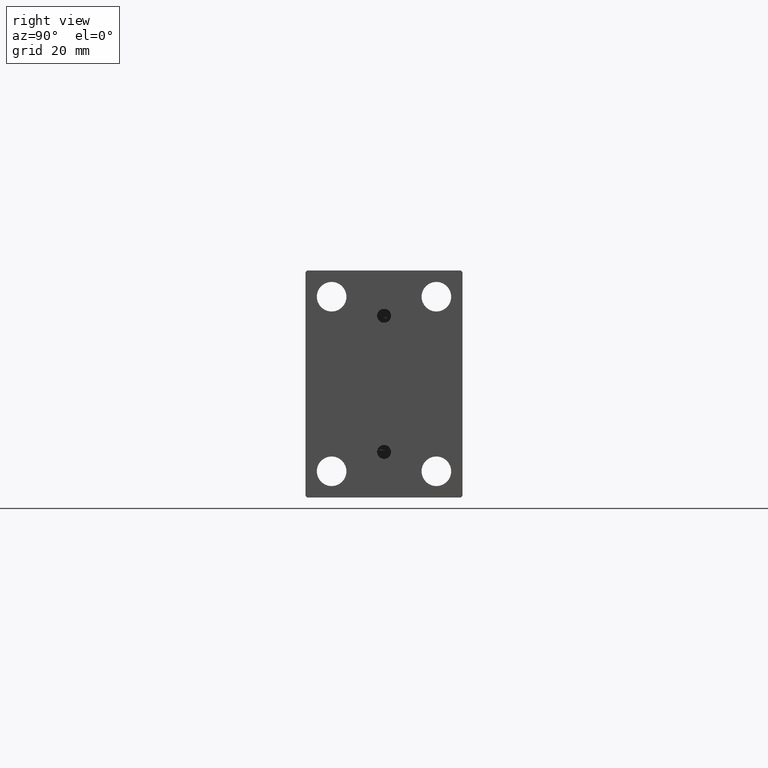
[diagram: clean part render]
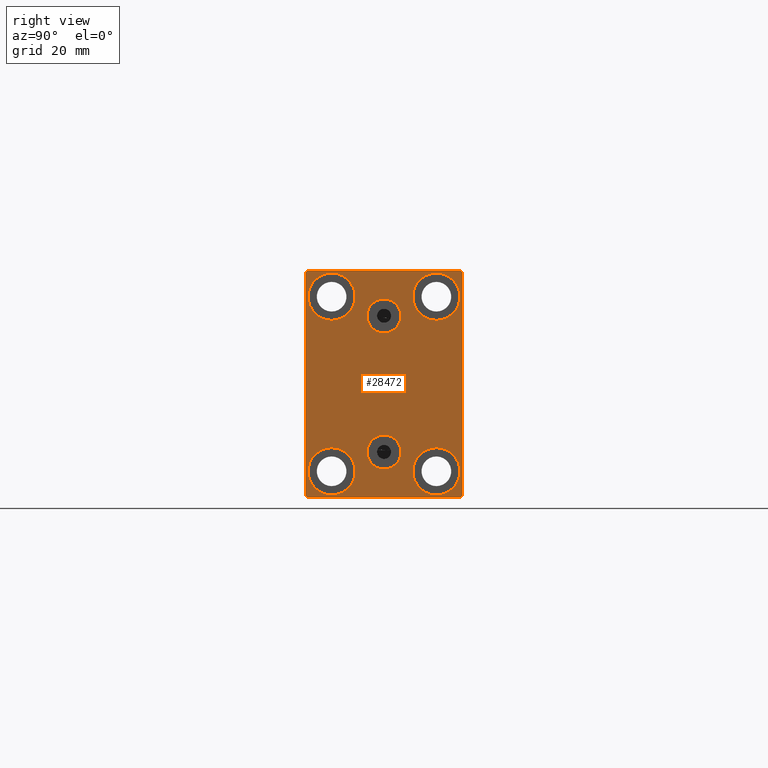
[diagram: same view with one face highlighted and labeled with its STEP entity id]
A machine part, right view. The second image highlights one B-rep face of the part: STEP entity #28472.
In plain terms, the highlighted planar face has unit normal (1, 0, 0).
Its self-contained STEP definition (entity closure, byte-faithful):
#80 = EDGE_CURVE ( 'NONE', #18574, #13682, #30199, .T. ) ;
#302 = DIRECTION ( 'NONE',  ( 0.000000000000000000, 0.000000000000000000, 1.000000000000000000 ) ) ;
#421 = VECTOR ( 'NONE', #9371, 1000.000000000000114 ) ;
#460 = VERTEX_POINT ( 'NONE', #30776 ) ;
#1385 = ORIENTED_EDGE ( 'NONE', *, *, #14246, .F. ) ;
#1437 = AXIS2_PLACEMENT_3D ( 'NONE', #16635, #19230, #37590 ) ;
#1664 = EDGE_CURVE ( 'NONE', #15079, #19727, #45665, .T. ) ;
#1693 = CARTESIAN_POINT ( 'NONE',  ( 130.0000000000000000, 22.50000000000000000, -32.50000000000000711 ) ) ;
#1722 = DIRECTION ( 'NONE',  ( 1.000000000000000000, 0.000000000000000000, 0.000000000000000000 ) ) ;
#2259 = EDGE_CURVE ( 'NONE', #29789, #15079, #23402, .T. ) ;
#2391 = DIRECTION ( 'NONE',  ( 1.000000000000000000, 0.000000000000000000, -0.000000000000000000 ) ) ;
#2956 = FACE_OUTER_BOUND ( 'NONE', #45263, .T. ) ;
#3032 = CARTESIAN_POINT ( 'NONE',  ( 130.0000000000000000, 14.99999999999999645, -31.75000000000000000 ) ) ;
#3393 = CARTESIAN_POINT ( 'NONE',  ( 130.0000000000000000, 14.99999999999999645, -25.00000000000000000 ) ) ;
#3778 = ORIENTED_EDGE ( 'NONE', *, *, #39087, .T. ) ;
#3831 = CIRCLE ( 'NONE', #36166, 4.859999999999999432 ) ;
#4043 = ORIENTED_EDGE ( 'NONE', *, *, #13913, .F. ) ;
#4207 = VECTOR ( 'NONE', #44427, 1000.000000000000000 ) ;
#4267 = CARTESIAN_POINT ( 'NONE',  ( 130.0000000000000000, -14.99999999999999645, 31.75000000000000000 ) ) ;
#4305 = CARTESIAN_POINT ( 'NONE',  ( 130.0000000000000000, 2.983239602722951428E-15, -14.63999999999999702 ) ) ;
#4311 = ORIENTED_EDGE ( 'NONE', *, *, #80, .T. ) ;
#4845 = DIRECTION ( 'NONE',  ( 1.000000000000000000, 0.000000000000000000, 0.000000000000000000 ) ) ;
#5224 = CARTESIAN_POINT ( 'NONE',  ( 130.0000000000000000, 2.388061258337338150E-15, -19.49999999999999645 ) ) ;
#5653 = EDGE_CURVE ( 'NONE', #40511, #36600, #5804, .T. ) ;
#5721 = DIRECTION ( 'NONE',  ( 0.000000000000000000, 0.000000000000000000, -1.000000000000000000 ) ) ;
#5781 = CARTESIAN_POINT ( 'NONE',  ( 130.0000000000000000, -14.99999999999999645, 25.00000000000000000 ) ) ;
#5804 = CIRCLE ( 'NONE', #11831, 4.859999999999999432 ) ;
#6145 = ORIENTED_EDGE ( 'NONE', *, *, #5653, .F. ) ;
#7409 = EDGE_LOOP ( 'NONE', ( #1385, #4043 ) ) ;
#7588 = ORIENTED_EDGE ( 'NONE', *, *, #32630, .T. ) ;
#8311 = CARTESIAN_POINT ( 'NONE',  ( 130.0000000000000000, 15.00000000000000355, 25.00000000000000000 ) ) ;
#8608 = CARTESIAN_POINT ( 'NONE',  ( 130.0000000000000000, 22.49999999999999289, 32.50000000000000000 ) ) ;
#8621 = ORIENTED_EDGE ( 'NONE', *, *, #24229, .T. ) ;
#8906 = EDGE_CURVE ( 'NONE', #44655, #29351, #37476, .T. ) ;
#9371 = DIRECTION ( 'NONE',  ( -0.000000000000000000, 0.7071067811865376918, -0.7071067811865573427 ) ) ;
#9490 = DIRECTION ( 'NONE',  ( 0.000000000000000000, -0.7071067811865474617, -0.7071067811865474617 ) ) ;
#9811 = ORIENTED_EDGE ( 'NONE', *, *, #2259, .T. ) ;
#9849 = VERTEX_POINT ( 'NONE', #33903 ) ;
#9960 = VECTOR ( 'NONE', #33443, 1000.000000000000000 ) ;
#10823 = DIRECTION ( 'NONE',  ( 0.000000000000000000, 1.000000000000000000, 0.000000000000000000 ) ) ;
#11141 = ORIENTED_EDGE ( 'NONE', *, *, #20587, .T. ) ;
#11279 = LINE ( 'NONE', #14586, #38268 ) ;
#11323 = CIRCLE ( 'NONE', #39912, 4.859999999999999432 ) ;
#11491 = DIRECTION ( 'NONE',  ( -1.000000000000000000, -0.000000000000000000, -0.000000000000000000 ) ) ;
#11674 = ORIENTED_EDGE ( 'NONE', *, *, #8906, .T. ) ;
#11781 = CARTESIAN_POINT ( 'NONE',  ( 130.0000000000000000, 27.24999999999955236, 27.25000000000068567 ) ) ;
#11831 = AXIS2_PLACEMENT_3D ( 'NONE', #5224, #2391, #13698 ) ;
#12532 = DIRECTION ( 'NONE',  ( 0.000000000000000000, -1.067522139062650425E-16, 1.000000000000000000 ) ) ;
#12746 = CIRCLE ( 'NONE', #17264, 4.859999999999999432 ) ;
#13334 = DIRECTION ( 'NONE',  ( 1.000000000000000000, 0.000000000000000000, 0.000000000000000000 ) ) ;
#13682 = VERTEX_POINT ( 'NONE', #29245 ) ;
#13687 = VERTEX_POINT ( 'NONE', #4267 ) ;
#13698 = DIRECTION ( 'NONE',  ( 0.000000000000000000, 0.000000000000000000, 1.000000000000000000 ) ) ;
#13726 = ORIENTED_EDGE ( 'NONE', *, *, #40309, .T. ) ;
#13913 = EDGE_CURVE ( 'NONE', #40003, #41973, #11323, .T. ) ;
#14024 = FACE_BOUND ( 'NONE', #21694, .T. ) ;
#14184 = EDGE_CURVE ( 'NONE', #32350, #460, #30140, .T. ) ;
#14203 = EDGE_LOOP ( 'NONE', ( #25457, #6145 ) ) ;
#14246 = EDGE_CURVE ( 'NONE', #41973, #40003, #3831, .T. ) ;
#14586 = CARTESIAN_POINT ( 'NONE',  ( 130.0000000000000000, 27.25000000000000711, -27.25000000000000711 ) ) ;
#14738 = CARTESIAN_POINT ( 'NONE',  ( 130.0000000000000000, -15.00000000000000355, -25.00000000000000000 ) ) ;
#14813 = DIRECTION ( 'NONE',  ( -0.000000000000000000, 0.7071067811865474617, 0.7071067811865474617 ) ) ;
#14836 = ORIENTED_EDGE ( 'NONE', *, *, #40507, .T. ) ;
#14950 = DIRECTION ( 'NONE',  ( -1.000000000000000000, -0.000000000000000000, -0.000000000000000000 ) ) ;
#15079 = VERTEX_POINT ( 'NONE', #45793 ) ;
#15115 = AXIS2_PLACEMENT_3D ( 'NONE', #8311, #18469, #302 ) ;
#15694 = DIRECTION ( 'NONE',  ( -1.000000000000000000, -0.000000000000000000, -0.000000000000000000 ) ) ;
#16218 = CIRCLE ( 'NONE', #44034, 6.749999999999999112 ) ;
#16635 = CARTESIAN_POINT ( 'NONE',  ( 130.0000000000000000, -14.99999999999999645, 25.00000000000000000 ) ) ;
#16869 = CARTESIAN_POINT ( 'NONE',  ( 130.0000000000000000, 0.000000000000000000, 0.000000000000000000 ) ) ;
#17168 = CARTESIAN_POINT ( 'NONE',  ( 130.0000000000000000, -21.99999999999999289, 32.49999999999999289 ) ) ;
#17264 = AXIS2_PLACEMENT_3D ( 'NONE', #28030, #24258, #42876 ) ;
#17921 = CARTESIAN_POINT ( 'NONE',  ( 130.0000000000000000, -22.50000000000000711, -32.50000000000000711 ) ) ;
#18159 = ORIENTED_EDGE ( 'NONE', *, *, #37519, .T. ) ;
#18469 = DIRECTION ( 'NONE',  ( -1.000000000000000000, -0.000000000000000000, -0.000000000000000000 ) ) ;
#18574 = VERTEX_POINT ( 'NONE', #36349 ) ;
#18998 = LINE ( 'NONE', #8608, #4207 ) ;
#19175 = DIRECTION ( 'NONE',  ( 0.000000000000000000, 0.000000000000000000, -1.000000000000000000 ) ) ;
#19230 = DIRECTION ( 'NONE',  ( -1.000000000000000000, -0.000000000000000000, -0.000000000000000000 ) ) ;
#19385 = CIRCLE ( 'NONE', #41196, 6.749999999999999112 ) ;
#19702 = CARTESIAN_POINT ( 'NONE',  ( 130.0000000000000000, -3.571693674697836683E-15, 19.50000000000000355 ) ) ;
#19727 = VERTEX_POINT ( 'NONE', #22634 ) ;
#20377 = AXIS2_PLACEMENT_3D ( 'NONE', #14738, #33102, #29561 ) ;
#20415 = PLANE ( 'NONE',  #45174 ) ;
#20587 = EDGE_CURVE ( 'NONE', #22114, #23626, #19385, .T. ) ;
#21694 = EDGE_LOOP ( 'NONE', ( #11141, #28520 ) ) ;
#22114 = VERTEX_POINT ( 'NONE', #3032 ) ;
#22634 = CARTESIAN_POINT ( 'NONE',  ( 130.0000000000000000, -22.00000000000003197, -32.50000000000000711 ) ) ;
#23192 = AXIS2_PLACEMENT_3D ( 'NONE', #25400, #11491, #39766 ) ;
#23402 = LINE ( 'NONE', #37763, #40317 ) ;
#23626 = VERTEX_POINT ( 'NONE', #28080 ) ;
#23828 = VERTEX_POINT ( 'NONE', #17168 ) ;
#23967 = ORIENTED_EDGE ( 'NONE', *, *, #26143, .T. ) ;
#24092 = CARTESIAN_POINT ( 'NONE',  ( 130.0000000000000000, -27.25000000000000000, 27.25000000000000000 ) ) ;
#24132 = AXIS2_PLACEMENT_3D ( 'NONE', #25321, #14950, #26016 ) ;
#24159 = DIRECTION ( 'NONE',  ( 0.000000000000000000, 0.000000000000000000, -1.000000000000000000 ) ) ;
#24229 = EDGE_CURVE ( 'NONE', #9849, #18574, #11279, .T. ) ;
#24258 = DIRECTION ( 'NONE',  ( 1.000000000000000000, 0.000000000000000000, -0.000000000000000000 ) ) ;
#24439 = DIRECTION ( 'NONE',  ( -1.000000000000000000, -0.000000000000000000, -0.000000000000000000 ) ) ;
#24932 = EDGE_CURVE ( 'NONE', #36600, #40511, #12746, .T. ) ;
#25321 = CARTESIAN_POINT ( 'NONE',  ( 130.0000000000000000, -15.00000000000000355, -25.00000000000000000 ) ) ;
#25400 = CARTESIAN_POINT ( 'NONE',  ( 130.0000000000000000, 15.00000000000000355, 25.00000000000000000 ) ) ;
#25457 = ORIENTED_EDGE ( 'NONE', *, *, #24932, .F. ) ;
#26016 = DIRECTION ( 'NONE',  ( 0.000000000000000000, 0.000000000000000000, 1.000000000000000000 ) ) ;
#26143 = EDGE_CURVE ( 'NONE', #13687, #41001, #30023, .T. ) ;
#26701 = CARTESIAN_POINT ( 'NONE',  ( 130.0000000000000000, -3.571693674697836683E-15, 19.50000000000000355 ) ) ;
#27372 = EDGE_CURVE ( 'NONE', #23626, #22114, #37620, .T. ) ;
#27819 = ORIENTED_EDGE ( 'NONE', *, *, #14184, .T. ) ;
#27860 = VECTOR ( 'NONE', #10823, 1000.000000000000000 ) ;
#28030 = CARTESIAN_POINT ( 'NONE',  ( 130.0000000000000000, 2.388061258337338150E-15, -19.49999999999999645 ) ) ;
#28080 = CARTESIAN_POINT ( 'NONE',  ( 130.0000000000000000, 14.99999999999999645, -18.25000000000000355 ) ) ;
#28095 = CARTESIAN_POINT ( 'NONE',  ( 130.0000000000000000, -22.50000000000000711, 31.99999999999999289 ) ) ;
#28397 = FACE_BOUND ( 'NONE', #36250, .T. ) ;
#28472 = ADVANCED_FACE ( 'NONE', ( #32158, #43009, #14024, #38998, #46311, #28397, #2956 ), #20415, .T. ) ;
#28520 = ORIENTED_EDGE ( 'NONE', *, *, #27372, .T. ) ;
#28639 = CIRCLE ( 'NONE', #20377, 6.749999999999999112 ) ;
#28961 = CARTESIAN_POINT ( 'NONE',  ( 130.0000000000000000, 15.00000000000000355, 18.25000000000000355 ) ) ;
#29068 = DIRECTION ( 'NONE',  ( 0.000000000000000000, 0.000000000000000000, 1.000000000000000000 ) ) ;
#29245 = CARTESIAN_POINT ( 'NONE',  ( 130.0000000000000000, 22.49999999999999289, 32.00000000000004974 ) ) ;
#29351 = VERTEX_POINT ( 'NONE', #28961 ) ;
#29561 = DIRECTION ( 'NONE',  ( 0.000000000000000000, 0.000000000000000000, 1.000000000000000000 ) ) ;
#29675 = CARTESIAN_POINT ( 'NONE',  ( 130.0000000000000000, -14.99999999999999645, 18.25000000000000355 ) ) ;
#29789 = VERTEX_POINT ( 'NONE', #28095 ) ;
#30023 = CIRCLE ( 'NONE', #1437, 6.749999999999999112 ) ;
#30046 = CARTESIAN_POINT ( 'NONE',  ( 130.0000000000000000, -15.00000000000000355, -18.25000000000000355 ) ) ;
#30140 = CIRCLE ( 'NONE', #24132, 6.749999999999999112 ) ;
#30199 = LINE ( 'NONE', #1693, #40359 ) ;
#30776 = CARTESIAN_POINT ( 'NONE',  ( 130.0000000000000000, -15.00000000000000355, -31.75000000000000000 ) ) ;
#31142 = CARTESIAN_POINT ( 'NONE',  ( 130.0000000000000000, 2.388061258337338150E-15, -24.35999999999999588 ) ) ;
#31503 = CARTESIAN_POINT ( 'NONE',  ( 130.0000000000000000, 14.99999999999999645, -25.00000000000000000 ) ) ;
#31578 = EDGE_LOOP ( 'NONE', ( #46352, #23967 ) ) ;
#32158 = FACE_BOUND ( 'NONE', #7409, .T. ) ;
#32208 = DIRECTION ( 'NONE',  ( 0.000000000000000000, 0.000000000000000000, 1.000000000000000000 ) ) ;
#32318 = EDGE_CURVE ( 'NONE', #41001, #13687, #16218, .T. ) ;
#32350 = VERTEX_POINT ( 'NONE', #30046 ) ;
#32488 = CARTESIAN_POINT ( 'NONE',  ( 130.0000000000000000, -3.571693674697836683E-15, 14.64000000000000412 ) ) ;
#32630 = EDGE_CURVE ( 'NONE', #23828, #29789, #35389, .T. ) ;
#33102 = DIRECTION ( 'NONE',  ( -1.000000000000000000, -0.000000000000000000, -0.000000000000000000 ) ) ;
#33443 = DIRECTION ( 'NONE',  ( -0.000000000000000000, -0.7071067811865622277, 0.7071067811865328068 ) ) ;
#33903 = CARTESIAN_POINT ( 'NONE',  ( 130.0000000000000000, 22.00000000000000000, -32.50000000000000711 ) ) ;
#34037 = CARTESIAN_POINT ( 'NONE',  ( 130.0000000000000000, 15.00000000000000355, 31.75000000000000000 ) ) ;
#34264 = VECTOR ( 'NONE', #9490, 1000.000000000000114 ) ;
#34335 = CARTESIAN_POINT ( 'NONE',  ( 130.0000000000000000, -27.25000000000033040, -27.24999999999957367 ) ) ;
#34513 = DIRECTION ( 'NONE',  ( 0.000000000000000000, 0.000000000000000000, 1.000000000000000000 ) ) ;
#34658 = CARTESIAN_POINT ( 'NONE',  ( 130.0000000000000000, -2.976515330312223406E-15, 24.36000000000000298 ) ) ;
#34995 = EDGE_LOOP ( 'NONE', ( #14836, #11674 ) ) ;
#35389 = LINE ( 'NONE', #24092, #34264 ) ;
#36155 = CIRCLE ( 'NONE', #15115, 6.749999999999999112 ) ;
#36166 = AXIS2_PLACEMENT_3D ( 'NONE', #26701, #1722, #19175 ) ;
#36250 = EDGE_LOOP ( 'NONE', ( #13726, #27819 ) ) ;
#36349 = CARTESIAN_POINT ( 'NONE',  ( 130.0000000000000000, 22.50000000000000000, -32.00000000000002132 ) ) ;
#36600 = VERTEX_POINT ( 'NONE', #31142 ) ;
#37438 = LINE ( 'NONE', #11781, #9960 ) ;
#37476 = CIRCLE ( 'NONE', #23192, 6.749999999999999112 ) ;
#37519 = EDGE_CURVE ( 'NONE', #39699, #23828, #18998, .T. ) ;
#37590 = DIRECTION ( 'NONE',  ( 0.000000000000000000, 0.000000000000000000, 1.000000000000000000 ) ) ;
#37620 = CIRCLE ( 'NONE', #38402, 6.749999999999999112 ) ;
#37763 = CARTESIAN_POINT ( 'NONE',  ( 130.0000000000000000, -22.50000000000000711, 32.49999999999999289 ) ) ;
#38268 = VECTOR ( 'NONE', #14813, 1000.000000000000114 ) ;
#38269 = ORIENTED_EDGE ( 'NONE', *, *, #46535, .T. ) ;
#38402 = AXIS2_PLACEMENT_3D ( 'NONE', #31503, #24439, #32208 ) ;
#38759 = CARTESIAN_POINT ( 'NONE',  ( 130.0000000000000000, 22.00000000000002132, 32.50000000000000000 ) ) ;
#38998 = FACE_BOUND ( 'NONE', #31578, .T. ) ;
#39087 = EDGE_CURVE ( 'NONE', #19727, #9849, #43340, .T. ) ;
#39699 = VERTEX_POINT ( 'NONE', #38759 ) ;
#39766 = DIRECTION ( 'NONE',  ( 0.000000000000000000, 0.000000000000000000, 1.000000000000000000 ) ) ;
#39912 = AXIS2_PLACEMENT_3D ( 'NONE', #19702, #4845, #44670 ) ;
#40003 = VERTEX_POINT ( 'NONE', #34658 ) ;
#40138 = DIRECTION ( 'NONE',  ( -1.000000000000000000, -0.000000000000000000, -0.000000000000000000 ) ) ;
#40309 = EDGE_CURVE ( 'NONE', #460, #32350, #28639, .T. ) ;
#40317 = VECTOR ( 'NONE', #5721, 1000.000000000000000 ) ;
#40359 = VECTOR ( 'NONE', #12532, 1000.000000000000000 ) ;
#40507 = EDGE_CURVE ( 'NONE', #29351, #44655, #36155, .T. ) ;
#40511 = VERTEX_POINT ( 'NONE', #4305 ) ;
#40739 = ORIENTED_EDGE ( 'NONE', *, *, #1664, .T. ) ;
#41001 = VERTEX_POINT ( 'NONE', #29675 ) ;
#41196 = AXIS2_PLACEMENT_3D ( 'NONE', #3393, #40138, #29068 ) ;
#41973 = VERTEX_POINT ( 'NONE', #32488 ) ;
#42876 = DIRECTION ( 'NONE',  ( 0.000000000000000000, 0.000000000000000000, 1.000000000000000000 ) ) ;
#43009 = FACE_BOUND ( 'NONE', #14203, .T. ) ;
#43340 = LINE ( 'NONE', #17921, #27860 ) ;
#44034 = AXIS2_PLACEMENT_3D ( 'NONE', #5781, #15694, #34513 ) ;
#44427 = DIRECTION ( 'NONE',  ( 0.000000000000000000, -1.000000000000000000, -1.541976423090495387E-16 ) ) ;
#44655 = VERTEX_POINT ( 'NONE', #34037 ) ;
#44670 = DIRECTION ( 'NONE',  ( 0.000000000000000000, 0.000000000000000000, -1.000000000000000000 ) ) ;
#45174 = AXIS2_PLACEMENT_3D ( 'NONE', #16869, #13334, #24159 ) ;
#45263 = EDGE_LOOP ( 'NONE', ( #18159, #7588, #9811, #40739, #3778, #8621, #4311, #38269 ) ) ;
#45665 = LINE ( 'NONE', #34335, #421 ) ;
#45793 = CARTESIAN_POINT ( 'NONE',  ( 130.0000000000000000, -22.50000000000000711, -32.00000000000002132 ) ) ;
#46311 = FACE_BOUND ( 'NONE', #34995, .T. ) ;
#46352 = ORIENTED_EDGE ( 'NONE', *, *, #32318, .T. ) ;
#46535 = EDGE_CURVE ( 'NONE', #13682, #39699, #37438, .T. ) ;